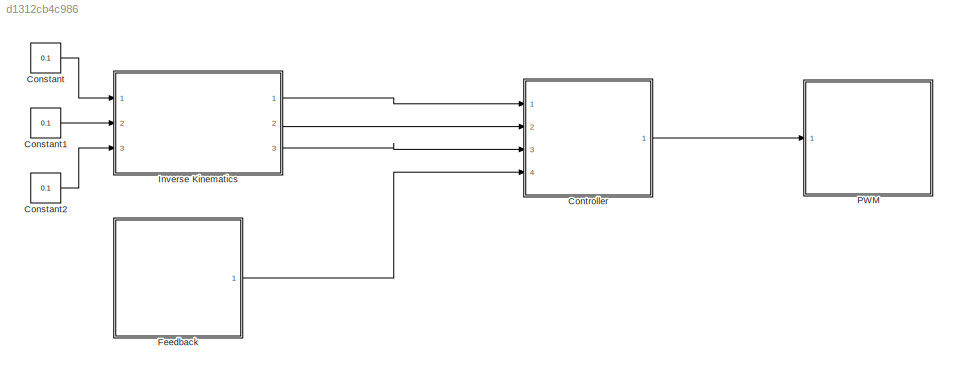
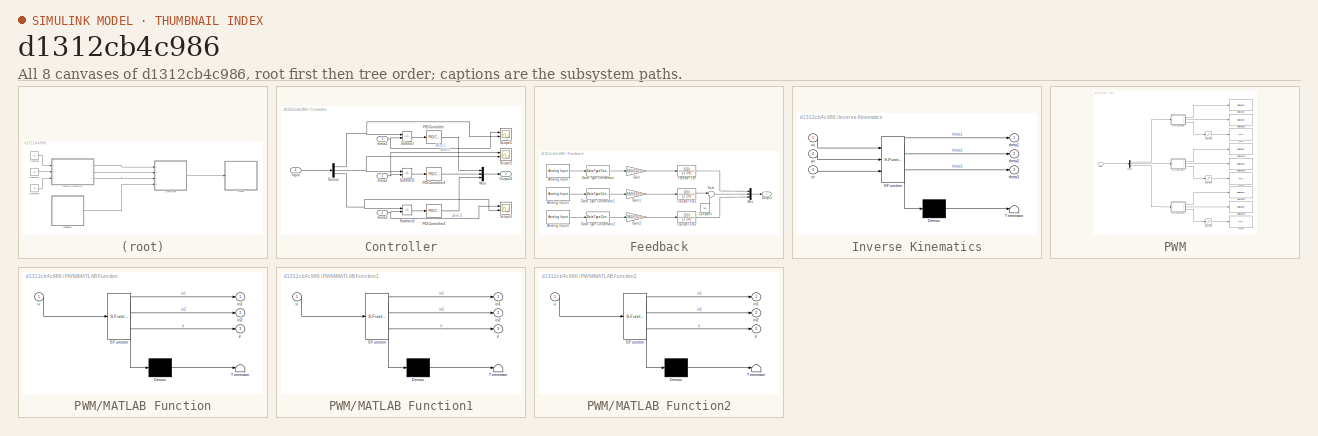
[diagram: thumbnail index - all 8 canvases of the model, root first then tree order]
MODEL slx_d1312cb4c986
KIND model
CONFIG AbsTol = auto
CONFIG EnableMultiTasking = on
CONFIG FixedStep = 0.01
CONFIG MaxStep = auto
CONFIG MinStep = auto
CONFIG RelTol = 1e-3
CONFIG SampleTimeConstraint = Unconstrained
CONFIG SolverName = FixedStepAuto
CONFIG StartTime = 0.0
CONFIG StopTime = inf
BLOCK [Constant] Constant
  Value = 0.1
BLOCK [Constant] Constant1
  Value = 0.1
BLOCK [Constant] Constant2
  Value = 0.1
BLOCK [SubSystem] Controller
  Ports = [4, 1]
  RequestExecContextInheritance = off
BLOCK [Demux] Controller/Demux
  Outputs = 3
  Ports = [1, 3]
BLOCK [Inport] Controller/Input
  Port = 4
BLOCK [Mux] Controller/Mux
  DisplayOption = bar
  Inputs = 3
  Ports = [3, 1]
BLOCK [Outport] Controller/Output1
BLOCK [Reference] Controller/PID Controller  REF=slpidlib/PID Controller
  Ports = [1, 1]
  SourceBlock = slpidlib/PID Controller
  SourceProductBaseCode = SL
  SourceType = PID 1dof
BLOCK [Reference] Controller/PID Controller1  REF=slpidlib/PID Controller
  Ports = [1, 1]
  SourceBlock = slpidlib/PID Controller
  SourceProductBaseCode = SL
  SourceType = PID 1dof
BLOCK [Reference] Controller/PID Controller2  REF=slpidlib/PID Controller
  Ports = [1, 1]
  SourceBlock = slpidlib/PID Controller
  SourceProductBaseCode = SL
  SourceType = PID 1dof
BLOCK [Scope] Controller/Scope1
  Floating = off
  NumInputPorts = 2
  Ports = [2]
  ScopeSpecificationString = Simulink.scopes.TimeScopeBlockCfg('CurrentConfiguration', extmgr.ConfigurationSet(extmgr.Configuration('Core','General UI',true),extmgr.Configuration('Core','Source UI',true),extmgr.Configuration('Sources','WiredSimulink',true),extmgr.Configuration('Visuals','Time Domain',true,'SerializedDisplays',{struct('MinYLimReal','135.52928','MaxYLimReal','142.12596','YLabelReal','','MinYLimMag','135.52928',...<+1407ch>
BLOCK [Scope] Controller/Scope2
  Floating = off
  NumInputPorts = 2
  Ports = [2]
  ScopeSpecificationString = Simulink.scopes.TimeScopeBlockCfg('CurrentConfiguration', extmgr.ConfigurationSet(extmgr.Configuration('Core','General UI',true),extmgr.Configuration('Core','Source UI',true),extmgr.Configuration('Sources','WiredSimulink',true,'DataLoggingVariableName','ScopeData1'),extmgr.Configuration('Visuals','Time Domain',true,'SerializedDisplays',{struct('MinYLimReal','49.73845','MaxYLimReal','52.35396','YLa...<+1467ch>
BLOCK [Scope] Controller/Scope3
  Floating = off
  NumInputPorts = 2
  Ports = [2]
  ScopeSpecificationString = Simulink.scopes.TimeScopeBlockCfg('CurrentConfiguration', extmgr.ConfigurationSet(extmgr.Configuration('Core','General UI',true),extmgr.Configuration('Core','Source UI',true),extmgr.Configuration('Sources','WiredSimulink',true,'DataLoggingVariableName','ScopeData1'),extmgr.Configuration('Visuals','Time Domain',true,'SerializedDisplays',{struct('MinYLimReal','49.73845','MaxYLimReal','52.35396','YLa...<+1467ch>
BLOCK [Sum] Controller/Subtract
  IconShape = rectangular
  Inputs = -+
  Ports = [2, 1]
BLOCK [Sum] Controller/Subtract1
  IconShape = rectangular
  Inputs = -+
  Ports = [2, 1]
BLOCK [Sum] Controller/Subtract2
  IconShape = rectangular
  Inputs = -+
  Ports = [2, 1]
BLOCK [Inport] Controller/theta1
BLOCK [Inport] Controller/theta2
  Port = 2
BLOCK [Inport] Controller/theta3
  Port = 3
BLOCK [SubSystem] Feedback
  Ports = [0, 1]
  RequestExecContextInheritance = off
BLOCK [Reference] Feedback/Analog Input  REF=arduinolib/Analog Input
  Ports = [0, 1]
  SourceBlock = arduinolib/Analog Input
  SourceProductBaseCode = ARDUINO
  SourceType = Arduino Analog Input
BLOCK [Reference] Feedback/Analog Input1  REF=arduinolib/Analog Input
  Ports = [0, 1]
  SourceBlock = arduinolib/Analog Input
  SourceProductBaseCode = ARDUINO
  SourceType = Arduino Analog Input
BLOCK [Reference] Feedback/Analog Input2  REF=arduinolib/Analog Input
  Ports = [0, 1]
  SourceBlock = arduinolib/Analog Input
  SourceProductBaseCode = ARDUINO
  SourceType = Arduino Analog Input
BLOCK [Constant] Feedback/Constant
  Value = 200
BLOCK [DataTypeConversion] Feedback/Data Type Conversion
  RndMeth = Floor
  SaturateOnIntegerOverflow = off
BLOCK [DataTypeConversion] Feedback/Data Type Conversion1
  RndMeth = Floor
  SaturateOnIntegerOverflow = off
BLOCK [DataTypeConversion] Feedback/Data Type Conversion2
  RndMeth = Floor
  SaturateOnIntegerOverflow = off
BLOCK [Gain] Feedback/Gain
  Gain = 360/1023
BLOCK [Gain] Feedback/Gain1
  Gain = 360/1023
BLOCK [Gain] Feedback/Gain2
  Gain = 360/1023
BLOCK [Mux] Feedback/Mux
  DisplayOption = bar
  Inputs = 3
  Ports = [3, 1]
BLOCK [Outport] Feedback/Output
BLOCK [Sum] Feedback/Sum
  Inputs = |+-
  Ports = [2, 1]
BLOCK [TransferFcn] Feedback/Transfer Fcn
  Denominator = [1 20]
  Numerator = [20]
BLOCK [TransferFcn] Feedback/Transfer Fcn1
  Denominator = [1 20]
  Numerator = [20]
BLOCK [TransferFcn] Feedback/Transfer Fcn2
  Denominator = [1 20]
  Numerator = [20]
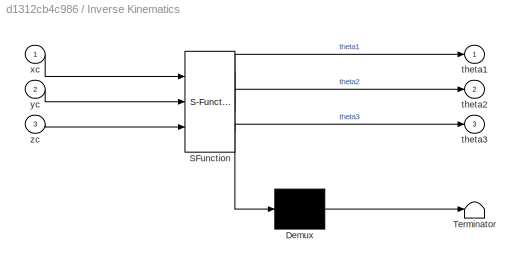
BLOCK [SubSystem] Inverse Kinematics
  ErrorFcn = Stateflow.Translate.translate
  PermitHierarchicalResolution = ExplicitOnly
  Ports = [3, 3]
  RequestExecContextInheritance = off
  SFBlockType = MATLAB Function
  TreatAsAtomicUnit = on
BLOCK [Demux] Inverse Kinematics/ Demux 
  Outputs = 1
  Ports = [1, 1]
BLOCK [S-Function] Inverse Kinematics/ SFunction 
  EnableBusSupport = on
  FunctionName = sf_sfun
  PortCounts = [3 4]
  Ports = [3, 4]
  SFcnIsStateOwnerBlock = off
  SFunctionDeploymentMode = off
  Tag = Stateflow S-Function 4
BLOCK [Terminator] Inverse Kinematics/ Terminator 
BLOCK [Outport] Inverse Kinematics/theta1
BLOCK [Outport] Inverse Kinematics/theta2
  Port = 2
BLOCK [Outport] Inverse Kinematics/theta3
  Port = 3
BLOCK [Inport] Inverse Kinematics/xc
BLOCK [Inport] Inverse Kinematics/yc
  Port = 2
BLOCK [Inport] Inverse Kinematics/zc
  Port = 3
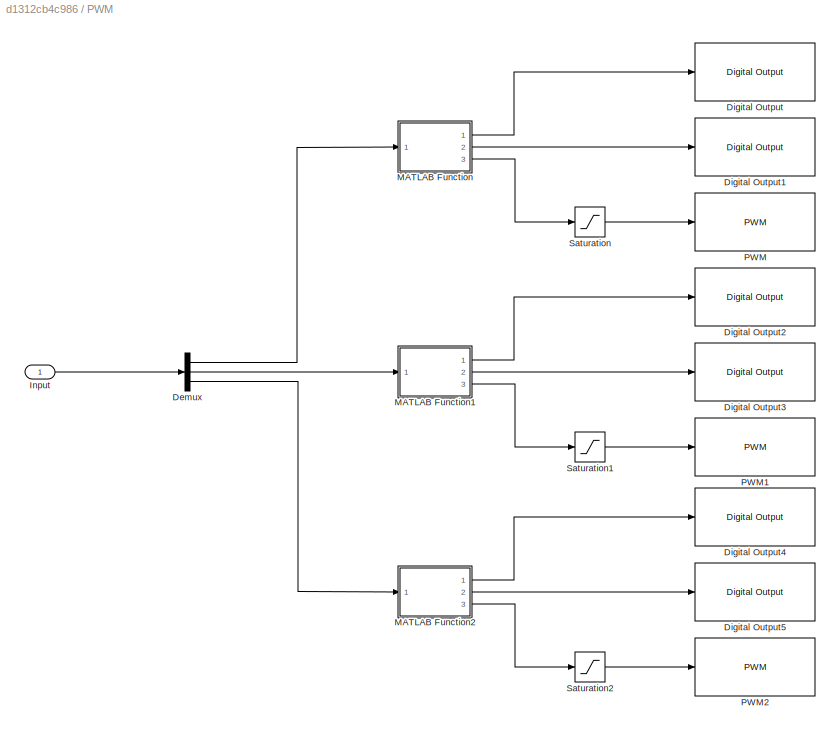
BLOCK [SubSystem] PWM
  Ports = [1]
  RequestExecContextInheritance = off
BLOCK [Demux] PWM/Demux
  Outputs = 3
  Ports = [1, 3]
BLOCK [Reference] PWM/Digital Output  REF=arduinolib/Digital Output
  Ports = [1]
  SourceBlock = arduinolib/Digital Output
  SourceProductBaseCode = ARDUINO
  SourceType = Arduino Digital Output
BLOCK [Reference] PWM/Digital Output1  REF=arduinolib/Digital Output
  Ports = [1]
  SourceBlock = arduinolib/Digital Output
  SourceProductBaseCode = ARDUINO
  SourceType = Arduino Digital Output
BLOCK [Reference] PWM/Digital Output2  REF=arduinolib/Digital Output
  Ports = [1]
  SourceBlock = arduinolib/Digital Output
  SourceProductBaseCode = ARDUINO
  SourceType = Arduino Digital Output
BLOCK [Reference] PWM/Digital Output3  REF=arduinolib/Digital Output
  Ports = [1]
  SourceBlock = arduinolib/Digital Output
  SourceProductBaseCode = ARDUINO
  SourceType = Arduino Digital Output
BLOCK [Reference] PWM/Digital Output4  REF=arduinolib/Digital Output
  Ports = [1]
  SourceBlock = arduinolib/Digital Output
  SourceProductBaseCode = ARDUINO
  SourceType = Arduino Digital Output
BLOCK [Reference] PWM/Digital Output5  REF=arduinolib/Digital Output
  Ports = [1]
  SourceBlock = arduinolib/Digital Output
  SourceProductBaseCode = ARDUINO
  SourceType = Arduino Digital Output
BLOCK [Inport] PWM/Input
BLOCK [SubSystem] PWM/MATLAB Function
  ErrorFcn = Stateflow.Translate.translate
  PermitHierarchicalResolution = ExplicitOnly
  Ports = [1, 3]
  RequestExecContextInheritance = off
  SFBlockType = MATLAB Function
  TreatAsAtomicUnit = on
BLOCK [Demux] PWM/MATLAB Function/ Demux 
  Outputs = 1
  Ports = [1, 1]
BLOCK [S-Function] PWM/MATLAB Function/ SFunction 
  EnableBusSupport = on
  FunctionName = sf_sfun
  PortCounts = [1 4]
  Ports = [1, 4]
  SFcnIsStateOwnerBlock = off
  SFunctionDeploymentMode = off
  Tag = Stateflow S-Function 2
BLOCK [Terminator] PWM/MATLAB Function/ Terminator 
BLOCK [Outport] PWM/MATLAB Function/in1
BLOCK [Outport] PWM/MATLAB Function/in2
  Port = 2
BLOCK [Inport] PWM/MATLAB Function/u
BLOCK [Outport] PWM/MATLAB Function/y
  Port = 3
BLOCK [SubSystem] PWM/MATLAB Function1
  ErrorFcn = Stateflow.Translate.translate
  PermitHierarchicalResolution = ExplicitOnly
  Ports = [1, 3]
  RequestExecContextInheritance = off
  SFBlockType = MATLAB Function
  TreatAsAtomicUnit = on
BLOCK [Demux] PWM/MATLAB Function1/ Demux 
  Outputs = 1
  Ports = [1, 1]
BLOCK [S-Function] PWM/MATLAB Function1/ SFunction 
  EnableBusSupport = on
  FunctionName = sf_sfun
  PortCounts = [1 4]
  Ports = [1, 4]
  SFcnIsStateOwnerBlock = off
  SFunctionDeploymentMode = off
  Tag = Stateflow S-Function 1
BLOCK [Terminator] PWM/MATLAB Function1/ Terminator 
BLOCK [Outport] PWM/MATLAB Function1/in1
BLOCK [Outport] PWM/MATLAB Function1/in2
  Port = 2
BLOCK [Inport] PWM/MATLAB Function1/u
BLOCK [Outport] PWM/MATLAB Function1/y
  Port = 3
BLOCK [SubSystem] PWM/MATLAB Function2
  ErrorFcn = Stateflow.Translate.translate
  PermitHierarchicalResolution = ExplicitOnly
  Ports = [1, 3]
  RequestExecContextInheritance = off
  SFBlockType = MATLAB Function
  TreatAsAtomicUnit = on
BLOCK [Demux] PWM/MATLAB Function2/ Demux 
  Outputs = 1
  Ports = [1, 1]
BLOCK [S-Function] PWM/MATLAB Function2/ SFunction 
  EnableBusSupport = on
  FunctionName = sf_sfun
  PortCounts = [1 4]
  Ports = [1, 4]
  SFcnIsStateOwnerBlock = off
  SFunctionDeploymentMode = off
  Tag = Stateflow S-Function 3
BLOCK [Terminator] PWM/MATLAB Function2/ Terminator 
BLOCK [Outport] PWM/MATLAB Function2/in1
BLOCK [Outport] PWM/MATLAB Function2/in2
  Port = 2
BLOCK [Inport] PWM/MATLAB Function2/u
BLOCK [Outport] PWM/MATLAB Function2/y
  Port = 3
BLOCK [Reference] PWM/PWM  REF=arduinolib/PWM
  Ports = [1]
  SourceBlock = arduinolib/PWM
  SourceProductBaseCode = ARDUINO
  SourceType = Arduino PWM
BLOCK [Reference] PWM/PWM1  REF=arduinolib/PWM
  Ports = [1]
  SourceBlock = arduinolib/PWM
  SourceProductBaseCode = ARDUINO
  SourceType = Arduino PWM
BLOCK [Reference] PWM/PWM2  REF=arduinolib/PWM
  Ports = [1]
  SourceBlock = arduinolib/PWM
  SourceProductBaseCode = ARDUINO
  SourceType = Arduino PWM
BLOCK [Saturate] PWM/Saturation
  LowerLimit = 0
  UpperLimit = 170
BLOCK [Saturate] PWM/Saturation1
  LowerLimit = 0
  UpperLimit = 170
BLOCK [Saturate] PWM/Saturation2
  LowerLimit = 0
  UpperLimit = 170
LINE Constant1:1 -> Inverse Kinematics:2
LINE Constant2:1 -> Inverse Kinematics:3
LINE Constant:1 -> Inverse Kinematics:1
NET Controller/Demux:1 -> Controller/Scope1:2, Controller/Subtract:1
NET Controller/Demux:2 -> Controller/Scope2:2, Controller/Subtract1:1
NET Controller/Demux:3 -> Controller/Scope3:2, Controller/Subtract2:1
LINE Controller/Input:1 -> Controller/Demux:1
LINE Controller/Mux:1 -> Controller/Output1:1
LINE Controller/PID Controller1:1 -> Controller/Mux:2
LINE Controller/PID Controller2:1 -> Controller/Mux:3
LINE Controller/PID Controller:1 -> Controller/Mux:1
LINE Controller/Subtract1:1 -> Controller/PID Controller1:1
LINE Controller/Subtract2:1 -> Controller/PID Controller2:1
LINE Controller/Subtract:1 -> Controller/PID Controller:1
NET Controller/theta1:1 -> Controller/Scope1:1, Controller/Subtract:2
NET Controller/theta2:1 -> Controller/Scope2:1, Controller/Subtract1:2
NET Controller/theta3:1 -> Controller/Scope3:1, Controller/Subtract2:2
LINE Controller:1 -> PWM:1
LINE Feedback/Analog Input1:1 -> Feedback/Data Type Conversion1:1
LINE Feedback/Analog Input2:1 -> Feedback/Data Type Conversion2:1
LINE Feedback/Analog Input:1 -> Feedback/Data Type Conversion:1
LINE Feedback/Constant:1 -> Feedback/Sum:2
LINE Feedback/Data Type Conversion1:1 -> Feedback/Gain1:1
LINE Feedback/Data Type Conversion2:1 -> Feedback/Gain2:1
LINE Feedback/Data Type Conversion:1 -> Feedback/Gain:1
LINE Feedback/Gain1:1 -> Feedback/Transfer Fcn1:1
LINE Feedback/Gain2:1 -> Feedback/Transfer Fcn2:1
LINE Feedback/Gain:1 -> Feedback/Transfer Fcn:1
LINE Feedback/Mux:1 -> Feedback/Output:1
LINE Feedback/Sum:1 -> Feedback/Mux:2
LINE Feedback/Transfer Fcn1:1 -> Feedback/Sum:1
LINE Feedback/Transfer Fcn2:1 -> Feedback/Mux:3
LINE Feedback/Transfer Fcn:1 -> Feedback/Mux:1
LINE Feedback:1 -> Controller:4
LINE Inverse Kinematics:1 -> Controller:1
LINE Inverse Kinematics:2 -> Controller:2
LINE Inverse Kinematics:3 -> Controller:3
LINE PWM/Demux:1 -> PWM/MATLAB Function:1
LINE PWM/Demux:2 -> PWM/MATLAB Function1:1
LINE PWM/Demux:3 -> PWM/MATLAB Function2:1
LINE PWM/Input:1 -> PWM/Demux:1
LINE PWM/MATLAB Function1:1 -> PWM/Digital Output2:1
LINE PWM/MATLAB Function1:2 -> PWM/Digital Output3:1
LINE PWM/MATLAB Function1:3 -> PWM/Saturation1:1
LINE PWM/MATLAB Function2:1 -> PWM/Digital Output4:1
LINE PWM/MATLAB Function2:2 -> PWM/Digital Output5:1
LINE PWM/MATLAB Function2:3 -> PWM/Saturation2:1
LINE PWM/MATLAB Function:1 -> PWM/Digital Output:1
LINE PWM/MATLAB Function:2 -> PWM/Digital Output1:1
LINE PWM/MATLAB Function:3 -> PWM/Saturation:1
LINE PWM/Saturation1:1 -> PWM/PWM1:1
LINE PWM/Saturation2:1 -> PWM/PWM2:1
LINE PWM/Saturation:1 -> PWM/PWM:1
note: NET lines group one-source signal fan-out (src -> all destinations, sorted); 1:1 wires keep LINE
CHART PWM/MATLAB Function1 states=1 transitions=1
  STATE_LABEL 'eML_blk_kernel()'
  STATE_LABEL 'SCRIPT:\nfunction [in1,in2,y] = fcn(u)\nif u > 0\n    in1 = 1;\n    in2 = 0;\n    y=u;\nelse\n    in1 = 0;\n    in2 = 1;\n    y = -u;\nend\n\nend'
CHART PWM/MATLAB Function states=1 transitions=1
  STATE_LABEL 'eML_blk_kernel()'
  STATE_LABEL 'SCRIPT:\nfunction [in1,in2,y] = fcn(u)\nif u > 0\n    in1 = 1;\n    in2 = 0;\n    y=u;\nelse\n    in1 = 0;\n    in2 = 1;\n    y = -u;\nend\n\nend'
CHART PWM/MATLAB Function2 states=1 transitions=1
  STATE_LABEL 'eML_blk_kernel()'
  STATE_LABEL 'SCRIPT:\nfunction [in1,in2,y] = fcn(u)\nif u > 0\n    in1 = 1;\n    in2 = 0;\n    y=u;\nelse\n    in1 = 0;\n    in2 = 1;\n    y = -u;\nend\n\nend'
CHART Inverse Kinematics states=1 transitions=1
  STATE_LABEL 'eML_blk_kernel()'
  STATE_LABEL 'SCRIPT:\nfunction [theta1,theta2,theta3] = fcn(xc,yc,zc)\nr=sqrt(xc^2+yc^2);\nk=0;\na=0.146875;\nb=0.03125;\ntheta1=atan2(xc,yc)*180/pi;\ntheta3=acos((xc^2+yc^2+(zc-k)^2-a^2-b^2)/(2*a*b))*180/pi;\ntheta2_mx=zeros(4);\ntheta2_mx(1)=atan((a*b*sin(theta3)+b^2/2*sin(2*theta3)+r*(zc-k))/(r^2-a^2-b^2*(cos(theta3))^2-2*a*b*cos(theta3)));\ntheta2_mx(2)=theta2_mx(1)+pi;\ntheta2_mx(3)=atan((a*b*sin(theta3)+b^2/2*sin(2...<+451ch>'
CHART  states=0 transitions=0
CHART  states=0 transitions=0
CHART  states=0 transitions=0
CHART  states=0 transitions=0
